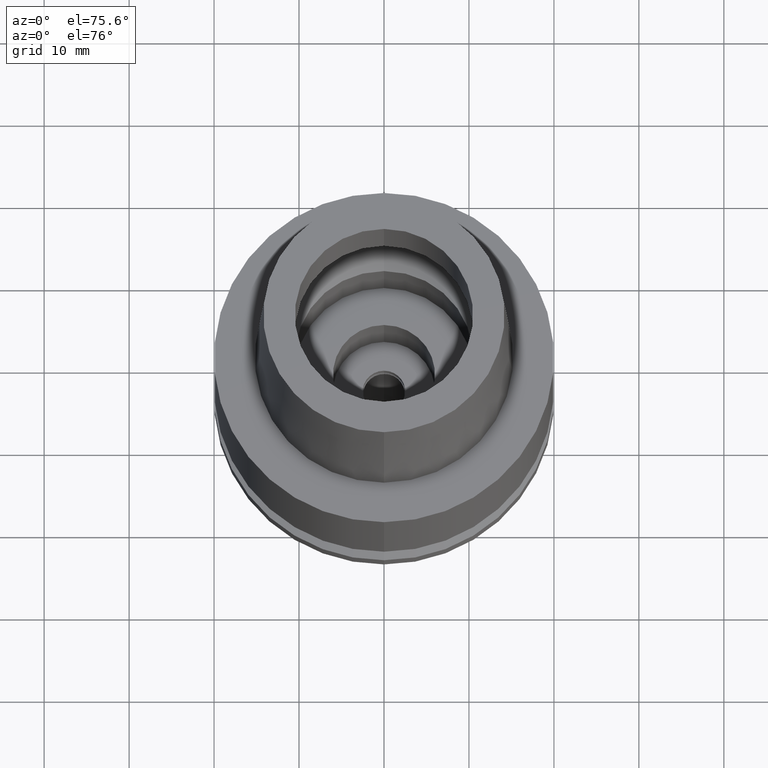
[diagram: clean part render]
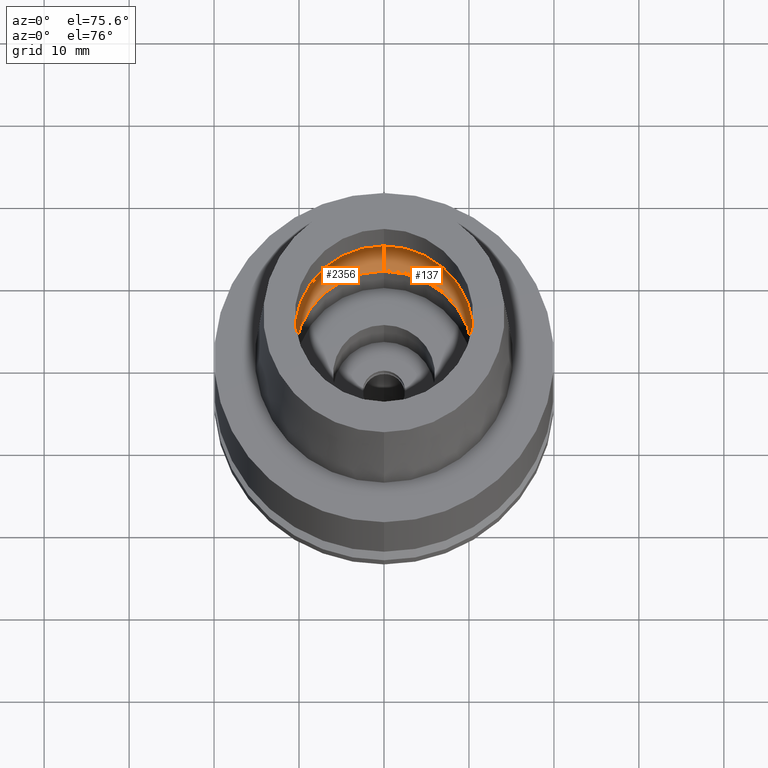
[diagram: same view with one multi-face feature highlighted, each face labeled with its STEP entity id]
A machine part, auxiliary view. The highlighted faces form ONE feature: a constant-radius fillet chain: 2 tangent blend faces with common blend radius 5 mm. The faces share edges in the B-rep.
Their STEP definitions:
[1] entity #2356 (Torus):
#116 = DIRECTION ( 'NONE',  ( 0.0000000000000000000, -1.000000000000000000, 0.0000000000000000000 ) ) ;
#201 = CARTESIAN_POINT ( 'NONE',  ( 0.0000000000000000000, 0.0000000000000000000, 0.05017672787747999574 ) ) ;
#209 = AXIS2_PLACEMENT_3D ( 'NONE', #2680, #2069, #1676 ) ;
#215 = CARTESIAN_POINT ( 'NONE',  ( 0.0000000000000000000, 12.75000000000000000, 4.225999999999999979 ) ) ;
#319 = CARTESIAN_POINT ( 'NONE',  ( 0.0000000000000000000, 0.0000000000000000000, 4.225999999999999979 ) ) ;
#352 = ORIENTED_EDGE ( 'NONE', *, *, #1529, .F. ) ;
#355 = CARTESIAN_POINT ( 'NONE',  ( 0.0000000000000000000, -10.50000000000000000, 0.05017672787747999574 ) ) ;
#379 = AXIS2_PLACEMENT_3D ( 'NONE', #2359, #482, #1692 ) ;
#407 = DIRECTION ( 'NONE',  ( 0.0000000000000000000, 0.0000000000000000000, 1.000000000000000000 ) ) ;
#418 = DIRECTION ( 'NONE',  ( 0.0000000000000000000, 1.000000000000000000, 0.0000000000000000000 ) ) ;
#448 = ORIENTED_EDGE ( 'NONE', *, *, #1959, .F. ) ;
#482 = DIRECTION ( 'NONE',  ( -1.000000000000000000, 0.0000000000000000000, 0.0000000000000000000 ) ) ;
#721 = CARTESIAN_POINT ( 'NONE',  ( 0.0000000000000000000, 10.50000000000000000, 0.05017672787744999890 ) ) ;
#840 = VERTEX_POINT ( 'NONE', #355 ) ;
#1006 = ORIENTED_EDGE ( 'NONE', *, *, #2443, .T. ) ;
#1039 = DIRECTION ( 'NONE',  ( 0.0000000000000000000, 1.000000000000000000, 0.0000000000000000000 ) ) ;
#1160 = DIRECTION ( 'NONE',  ( 0.0000000000000000000, 0.0000000000000000000, -1.000000000000000000 ) ) ;
#1208 = AXIS2_PLACEMENT_3D ( 'NONE', #319, #1160, #116 ) ;
#1236 = DIRECTION ( 'NONE',  ( 0.0000000000000000000, 0.0000000000000000000, 1.000000000000000000 ) ) ;
#1307 = EDGE_CURVE ( 'NONE', #2638, #1916, #2625, .T. ) ;
#1331 = EDGE_LOOP ( 'NONE', ( #1819, #352, #448, #1006 ) ) ;
#1345 = TOROIDAL_SURFACE ( 'NONE', #1862, 7.750000000000000000, 5.000000000000000000 ) ;
#1529 = EDGE_CURVE ( 'NONE', #840, #2638, #2190, .T. ) ;
#1676 = DIRECTION ( 'NONE',  ( 0.0000000000000000000, 0.5500000000000007105, -0.8351646544245028281 ) ) ;
#1692 = DIRECTION ( 'NONE',  ( 0.0000000000000000000, -0.5500000000000007105, -0.8351646544245028281 ) ) ;
#1729 = VERTEX_POINT ( 'NONE', #721 ) ;
#1819 = ORIENTED_EDGE ( 'NONE', *, *, #1307, .F. ) ;
#1862 = AXIS2_PLACEMENT_3D ( 'NONE', #2045, #407, #1039 ) ;
#1916 = VERTEX_POINT ( 'NONE', #215 ) ;
#1959 = EDGE_CURVE ( 'NONE', #1729, #840, #2502, .T. ) ;
#2045 = CARTESIAN_POINT ( 'NONE',  ( 0.0000000000000000000, 0.0000000000000000000, 4.225999999999999979 ) ) ;
#2069 = DIRECTION ( 'NONE',  ( 1.000000000000000000, 0.0000000000000000000, 0.0000000000000000000 ) ) ;
#2112 = CIRCLE ( 'NONE', #209, 4.999999999999994671 ) ;
#2147 = AXIS2_PLACEMENT_3D ( 'NONE', #201, #1236, #418 ) ;
#2190 = CIRCLE ( 'NONE', #379, 4.999999999999994671 ) ;
#2249 = FACE_OUTER_BOUND ( 'NONE', #1331, .T. ) ;
#2356 = ADVANCED_FACE ( 'NONE', ( #2249 ), #1345, .F. ) ;
#2359 = CARTESIAN_POINT ( 'NONE',  ( 0.0000000000000000000, -7.750000000000000000, 4.225999999999999979 ) ) ;
#2443 = EDGE_CURVE ( 'NONE', #1729, #1916, #2112, .T. ) ;
#2502 = CIRCLE ( 'NONE', #2147, 10.50000000000000000 ) ;
#2535 = CARTESIAN_POINT ( 'NONE',  ( 0.0000000000000000000, -12.75000000000000000, 4.225999999999999979 ) ) ;
#2625 = CIRCLE ( 'NONE', #1208, 12.75000000000000000 ) ;
#2638 = VERTEX_POINT ( 'NONE', #2535 ) ;
#2680 = CARTESIAN_POINT ( 'NONE',  ( 0.0000000000000000000, 7.750000000000000000, 4.225999999999999979 ) ) ;
[2] entity #137 (Torus):
#137 = ADVANCED_FACE ( 'NONE', ( #787 ), #2674, .F. ) ;
#166 = EDGE_CURVE ( 'NONE', #840, #1729, #1810, .T. ) ;
#179 = CARTESIAN_POINT ( 'NONE',  ( 0.0000000000000000000, 0.0000000000000000000, 4.225999999999999979 ) ) ;
#209 = AXIS2_PLACEMENT_3D ( 'NONE', #2680, #2069, #1676 ) ;
#215 = CARTESIAN_POINT ( 'NONE',  ( 0.0000000000000000000, 12.75000000000000000, 4.225999999999999979 ) ) ;
#248 = CIRCLE ( 'NONE', #1469, 12.75000000000000000 ) ;
#355 = CARTESIAN_POINT ( 'NONE',  ( 0.0000000000000000000, -10.50000000000000000, 0.05017672787747999574 ) ) ;
#379 = AXIS2_PLACEMENT_3D ( 'NONE', #2359, #482, #1692 ) ;
#423 = EDGE_LOOP ( 'NONE', ( #460, #1736, #2490, #2665 ) ) ;
#427 = AXIS2_PLACEMENT_3D ( 'NONE', #1420, #2042, #1408 ) ;
#430 = DIRECTION ( 'NONE',  ( 0.0000000000000000000, 0.0000000000000000000, 1.000000000000000000 ) ) ;
#460 = ORIENTED_EDGE ( 'NONE', *, *, #166, .F. ) ;
#482 = DIRECTION ( 'NONE',  ( -1.000000000000000000, 0.0000000000000000000, 0.0000000000000000000 ) ) ;
#721 = CARTESIAN_POINT ( 'NONE',  ( 0.0000000000000000000, 10.50000000000000000, 0.05017672787744999890 ) ) ;
#787 = FACE_OUTER_BOUND ( 'NONE', #423, .T. ) ;
#840 = VERTEX_POINT ( 'NONE', #355 ) ;
#1211 = DIRECTION ( 'NONE',  ( 0.0000000000000000000, 0.0000000000000000000, -1.000000000000000000 ) ) ;
#1312 = DIRECTION ( 'NONE',  ( 0.0000000000000000000, -1.000000000000000000, 0.0000000000000000000 ) ) ;
#1408 = DIRECTION ( 'NONE',  ( 0.0000000000000000000, 1.000000000000000000, 0.0000000000000000000 ) ) ;
#1420 = CARTESIAN_POINT ( 'NONE',  ( 0.0000000000000000000, 0.0000000000000000000, 4.225999999999999979 ) ) ;
#1469 = AXIS2_PLACEMENT_3D ( 'NONE', #179, #1211, #1600 ) ;
#1529 = EDGE_CURVE ( 'NONE', #840, #2638, #2190, .T. ) ;
#1600 = DIRECTION ( 'NONE',  ( 0.0000000000000000000, 1.000000000000000000, 0.0000000000000000000 ) ) ;
#1676 = DIRECTION ( 'NONE',  ( 0.0000000000000000000, 0.5500000000000007105, -0.8351646544245028281 ) ) ;
#1692 = DIRECTION ( 'NONE',  ( 0.0000000000000000000, -0.5500000000000007105, -0.8351646544245028281 ) ) ;
#1729 = VERTEX_POINT ( 'NONE', #721 ) ;
#1736 = ORIENTED_EDGE ( 'NONE', *, *, #1529, .T. ) ;
#1810 = CIRCLE ( 'NONE', #2580, 10.50000000000000000 ) ;
#1916 = VERTEX_POINT ( 'NONE', #215 ) ;
#2042 = DIRECTION ( 'NONE',  ( 0.0000000000000000000, 0.0000000000000000000, 1.000000000000000000 ) ) ;
#2069 = DIRECTION ( 'NONE',  ( 1.000000000000000000, 0.0000000000000000000, 0.0000000000000000000 ) ) ;
#2112 = CIRCLE ( 'NONE', #209, 4.999999999999994671 ) ;
#2126 = CARTESIAN_POINT ( 'NONE',  ( 0.0000000000000000000, 0.0000000000000000000, 0.05017672787747999574 ) ) ;
#2190 = CIRCLE ( 'NONE', #379, 4.999999999999994671 ) ;
#2294 = EDGE_CURVE ( 'NONE', #1916, #2638, #248, .T. ) ;
#2359 = CARTESIAN_POINT ( 'NONE',  ( 0.0000000000000000000, -7.750000000000000000, 4.225999999999999979 ) ) ;
#2443 = EDGE_CURVE ( 'NONE', #1729, #1916, #2112, .T. ) ;
#2490 = ORIENTED_EDGE ( 'NONE', *, *, #2294, .F. ) ;
#2535 = CARTESIAN_POINT ( 'NONE',  ( 0.0000000000000000000, -12.75000000000000000, 4.225999999999999979 ) ) ;
#2580 = AXIS2_PLACEMENT_3D ( 'NONE', #2126, #430, #1312 ) ;
#2638 = VERTEX_POINT ( 'NONE', #2535 ) ;
#2665 = ORIENTED_EDGE ( 'NONE', *, *, #2443, .F. ) ;
#2674 = TOROIDAL_SURFACE ( 'NONE', #427, 7.750000000000000000, 5.000000000000000000 ) ;
#2680 = CARTESIAN_POINT ( 'NONE',  ( 0.0000000000000000000, 7.750000000000000000, 4.225999999999999979 ) ) ;